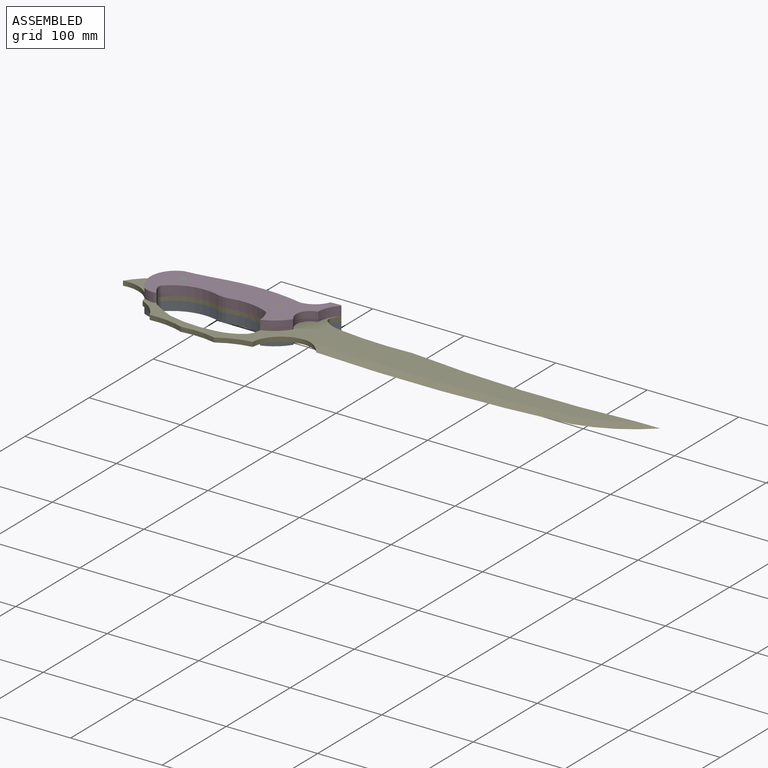
[diagram: assembled view]
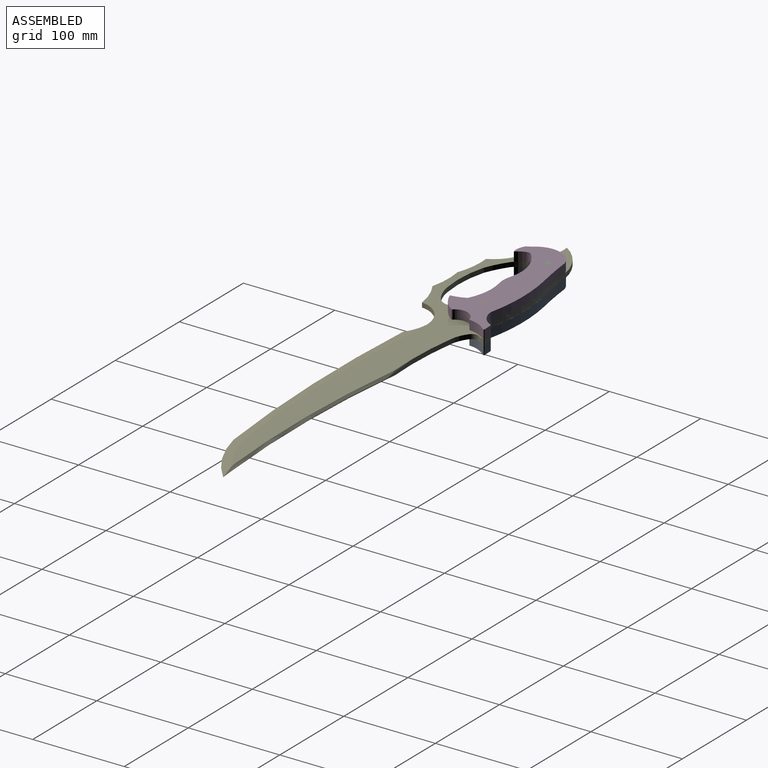
[diagram: assembled view, second angle]
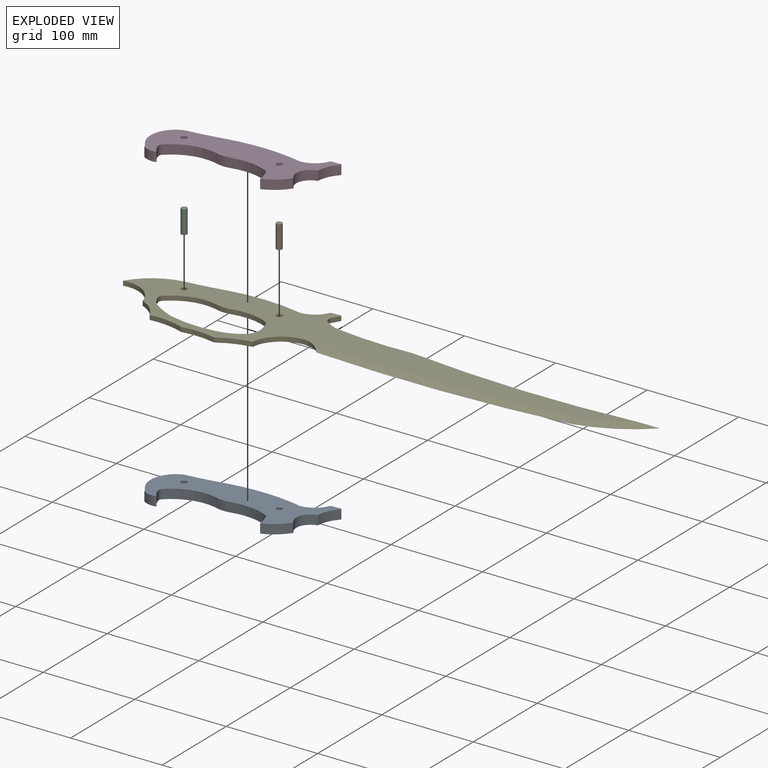
[diagram: exploded view]
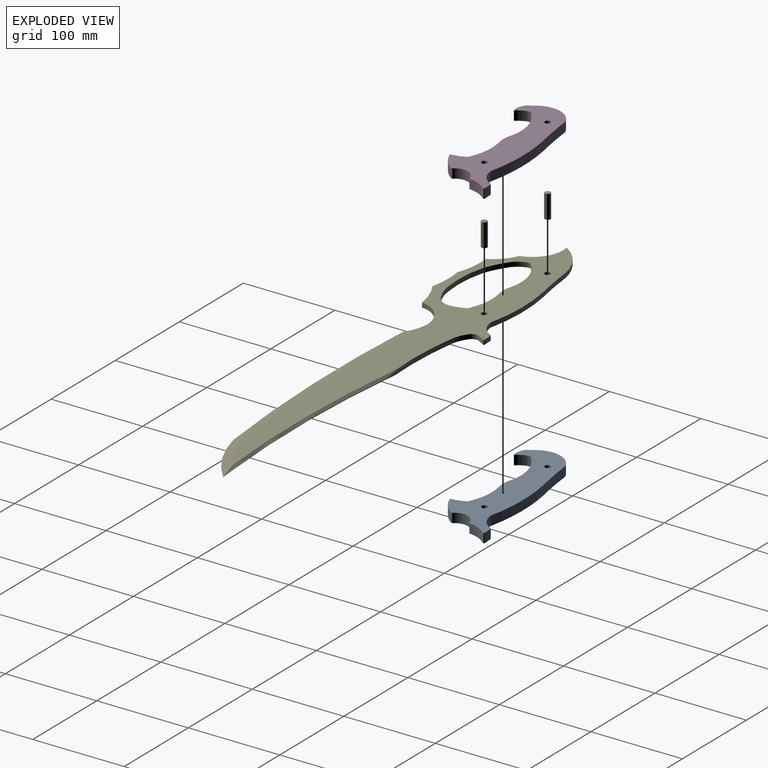
[diagram: exploded view, second angle]
ASSEMBLY  parts=5 mates=4
PART A: 29 faces, bbox 175.5x74.2x10.2 mm
  f0: plane 10.21x9.54mm, normal (-0.06,1,0), area 97.5mm2, adj f1,f26,f27,f28
  f1: cylinder r=2.2mm len=10.21mm, axis (0,0,-1), area 17.8mm2, adj f0,f2,f27,f28
  f2: cylinder r=23.25mm len=10.49mm, axis (0,0,-1), area 138.4mm2, adj f1,f3,f27,f28
  f3: cylinder r=26.78mm len=13.48mm, axis (0,0,-1), area 147.6mm2, adj f2,f4,f27,f28
  f4: cylinder r=204.33mm len=81.05mm, axis (0,0,-1), area 833.2mm2, adj f3,f5,f27,f28
  f5: cylinder r=450.71mm len=42.35mm, axis (0,0,-1), area 437.7mm2, adj f4,f6,f27,f28
  f6: cylinder r=27.68mm len=42mm, axis (0,0,-1), area 519.6mm2, adj f5,f7,f27,f28
  f7: cylinder r=33.9mm len=10.21mm, axis (0,0,-1), area 86.8mm2, adj f6,f8,f27,f28
  f8: cylinder r=20.84mm len=11.38mm, axis (0,0,-1), area 122.4mm2, adj f7,f9,f27,f28
  f9: cylinder r=8.35mm len=10.21mm, axis (0,0,-1), area 37mm2, adj f8,f10,f27,f28
  f10: cylinder r=30.58mm len=10.21mm, axis (0,0,-1), area 112.8mm2, adj f9,f11,f27,f28
  f11: cylinder r=7.9mm len=10.21mm, axis (0,0,-1), area 51.7mm2, adj f10,f12,f27,f28
  f12: cylinder r=52.39mm len=49.81mm, axis (0,0,-1), area 553.1mm2, adj f11,f13,f27,f28
  f13: cylinder r=31.92mm len=17.46mm, axis (0,0,-1), area 181mm2, adj f12,f14,f27,f28
  f14: cylinder r=62.66mm len=42.62mm, axis (0,0,-1), area 447.3mm2, adj f13,f15,f27,f28
  f15: cylinder r=46.41mm len=15.74mm, axis (0,0,-1), area 168mm2, adj f14,f16,f27,f28
  f16: cylinder r=2.75mm len=10.21mm, axis (0,0,-1), area 5.6mm2, adj f15,f17,f27,f28
  f17: cylinder r=46.96mm len=23.18mm, axis (0,0,-1), area 302.5mm2, adj f16,f18,f27,f28
  f18: cylinder r=1.67mm len=10.21mm, axis (0,0,-1), area 16.7mm2, adj f17,f19,f27,f28
  f19: cylinder r=14.5mm len=14.48mm, axis (0,0,-1), area 157.8mm2, adj f18,f20,f27,f28
  f20: cylinder r=16.88mm len=11.7mm, axis (0,0,-1), area 163.5mm2, adj f19,f21,f27,f28
  f21: cylinder r=1.03mm len=10.21mm, axis (0,0,-1), area 15.1mm2, adj f20,f22,f27,f28
  f22: cylinder r=32.13mm len=19.54mm, axis (0,0,-1), area 222.8mm2, adj f21,f23,f27,f28
  f23: cylinder r=126.88mm len=10.21mm, axis (0,0,-1), area 22.2mm2, adj f22,f26,f27,f28
  f24: cylinder r=3.17mm len=10.21mm, axis (0,0,-1), area 203.3mm2, adj f27,f28
  f25: cylinder r=3.17mm len=10.21mm, axis (0,0,-1), area 203.3mm2, adj f27,f28
  f26: cylinder r=1.09mm len=10.21mm, axis (0,0,-1), area 12.8mm2, adj f0,f23,f27,f28
  f27: plane 175.51x74.17mm, normal (0,0,1), area 5590.9mm2, adj f0,f1,f2,f3,f4,f5,f6,f7
  f28: plane 175.51x74.17mm, normal (0,0,-1), area 5590.9mm2, adj f0,f1,f2,f3,f4,f5,f6,f7
PART B: 3 faces, bbox 6.4x6.4x25.4 mm
  f0: cylinder r=3.17mm len=25.4mm, axis (0,0,-1), area 506.7mm2, adj f1,f2
  f1: plane 6.35x6.35mm, normal (0,0,1), area 31.7mm2, adj f0
  f2: plane 6.35x6.35mm, normal (0,0,-1), area 31.7mm2, adj f0
PART C: same geometry as B
PART D: same geometry as A
PART E: 41 faces, bbox 570.9x103.4x5 mm
  f0: cylinder r=24.85mm len=26.25mm, axis (0,0,-1), area 112.2mm2, adj f16,f17,f18,f19,f20
  f1: cylinder r=398.44mm len=95.57mm, axis (0,0,-1), area 446.5mm2, adj f2,f17,f18,f37,f38
  f2: cylinder r=36.28mm len=17.04mm, axis (0,0,-1), area 92.9mm2, adj f1,f3,f17,f18
  f3: cylinder r=7.82mm len=8.12mm, axis (0,0,-1), area 46mm2, adj f2,f4,f17,f18
  f4: cylinder r=126.88mm len=9.7mm, axis (0,0,-1), area 54.9mm2, adj f3,f17,f18,f28
  f5: cylinder r=19.78mm len=13.81mm, axis (0,0,-1), area 74.6mm2, adj f6,f17,f18,f27
  f6: cylinder r=52.81mm len=26.47mm, axis (0,0,-1), area 144.4mm2, adj f5,f7,f17,f18
  f7: cylinder r=123.54mm len=51.78mm, axis (0,0,-1), area 260.2mm2, adj f6,f8,f17,f18
  f8: cylinder r=109.96mm len=23.94mm, axis (0,0,-1), area 135.7mm2, adj f7,f9,f17,f18
  f9: cylinder r=30.58mm len=11.51mm, axis (0,0,-1), area 68.6mm2, adj f8,f17,f18,f23
  f10: cylinder r=33.9mm len=12.73mm, axis (0,0,-1), area 71.5mm2, adj f11,f17,f18,f40
  f11: cylinder r=42.12mm len=22.19mm, axis (0,0,-1), area 154.9mm2, adj f10,f12,f17,f18
  f12: cylinder r=83.87mm len=37.6mm, axis (0,0,-1), area 190.3mm2, adj f11,f13,f17,f18
  f13: cylinder r=93.75mm len=37.12mm, axis (0,0,-1), area 186.2mm2, adj f12,f14,f17,f18
  f14: cylinder r=81.4mm len=33.82mm, axis (0,0,-1), area 180.4mm2, adj f13,f15,f17,f18
  f15: cylinder r=27.61mm len=12.06mm, axis (0,0,-1), area 63.3mm2, adj f14,f16,f17,f18
  f16: cylinder r=35.82mm len=26.21mm, axis (0,0,-1), area 163.4mm2, adj f0,f15,f17,f18
  f17: plane 549.52x103.44mm, normal (0,0,1), area 18362.5mm2, adj f0,f1,f2,f3,f4,f5,f6,f7
  f18: plane 549.52x103.44mm, normal (0,0,-1), area 18362.5mm2, adj f0,f1,f2,f3,f4,f5,f6,f7
  f19: cone r=1506.99mm half-angle=76.2deg, axis (0,0,-1), area 2925.9mm2, adj f0,f17,f20,f21
  f20: cone r=1517.15mm half-angle=76.2deg, axis (0,0,1), area 2925.9mm2, adj f0,f18,f19,f22
  f21: cone r=137.36mm half-angle=76.2deg, axis (0,0,-1), area 720.8mm2, adj f17,f19,f22,f37
  f22: cone r=147.52mm half-angle=76.2deg, axis (0,0,1), area 720.8mm2, adj f18,f20,f21,f38
  f23: cylinder r=7.9mm len=4.98mm, axis (0,0,-1), area 25.2mm2, adj f9,f17,f18,f24
  f24: cylinder r=52.39mm len=49.81mm, axis (0,0,-1), area 269.7mm2, adj f17,f18,f23,f25
  f25: cylinder r=31.92mm len=17.46mm, axis (0,0,-1), area 88.2mm2, adj f17,f18,f24,f26
  f26: cylinder r=62.66mm len=42.62mm, axis (0,0,-1), area 218.1mm2, adj f17,f18,f25,f27
  f27: cylinder r=46.41mm len=15.74mm, axis (0,0,-1), area 81.9mm2, adj f5,f17,f18,f26
  f28: cylinder r=1.09mm len=4.98mm, axis (0,0,-1), area 6.2mm2, adj f4,f17,f18,f29
  f29: plane 9.54x4.98mm, normal (-0.06,1,0), area 47.6mm2, adj f17,f18,f28,f30
  f30: cylinder r=2.2mm len=4.98mm, axis (0,0,-1), area 8.7mm2, adj f17,f18,f29,f31
  f31: cylinder r=23.25mm len=10.49mm, axis (0,0,-1), area 67.5mm2, adj f17,f18,f30,f32
  f32: cylinder r=26.78mm len=13.48mm, axis (0,0,-1), area 72mm2, adj f17,f18,f31,f33
  f33: cylinder r=204.33mm len=81.05mm, axis (0,0,-1), area 406.3mm2, adj f17,f18,f32,f34
  f34: cylinder r=450.71mm len=42.35mm, axis (0,0,-1), area 213.4mm2, adj f17,f18,f33,f39
  f35: cylinder r=3.17mm len=6.34mm, axis (0,0,-1), area 99.1mm2, adj f17,f18
  f36: cylinder r=3.17mm len=6.34mm, axis (0,0,-1), area 99.1mm2, adj f17,f18
  f37: cone r=1168.37mm half-angle=44.4deg, axis (0,0,1), area 884mm2, adj f1,f17,f21,f38
  f38: cone r=1170.86mm half-angle=44.4deg, axis (0,0,-1), area 884mm2, adj f1,f18,f22,f37
  f39: cylinder r=64.98mm len=45.62mm, axis (0,0,-1), area 280.4mm2, adj f17,f18,f34,f40
  f40: cylinder r=33.88mm len=32.44mm, axis (0,0,-1), area 180.9mm2, adj f10,f17,f18,f39
PLACE A t=(-386.88,-137.3,2.71)mm
PLACE B t=(-402.38,-128.16,2.71)mm
PLACE C t=(-504.63,-130.61,2.71)mm
PLACE D t=(-386.88,-137.3,17.9)mm
PLACE E t=(-26.37,-71.71,12.93)mm
MATE fastened B.f0 <-> A.f24  axis (0,0,-1) through (-402.38,-128.16,2.71)mm
MATE fastened D.f25 <-> C.f0  axis (0,0,1) through (-504.63,-130.61,28.11)mm
MATE fastened A.f25 <-> E.f36  axis (0,0,1) through (-504.63,-130.61,12.93)mm
MATE fastened C.f0 <-> A.f25  axis (0,0,-1) through (-504.63,-130.61,2.71)mm
